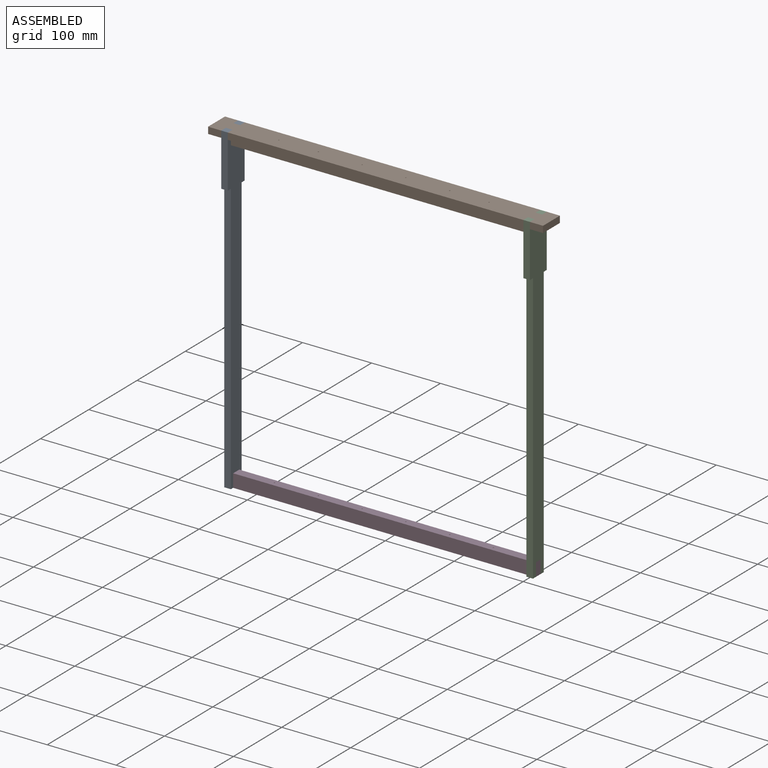
[diagram: assembled view]
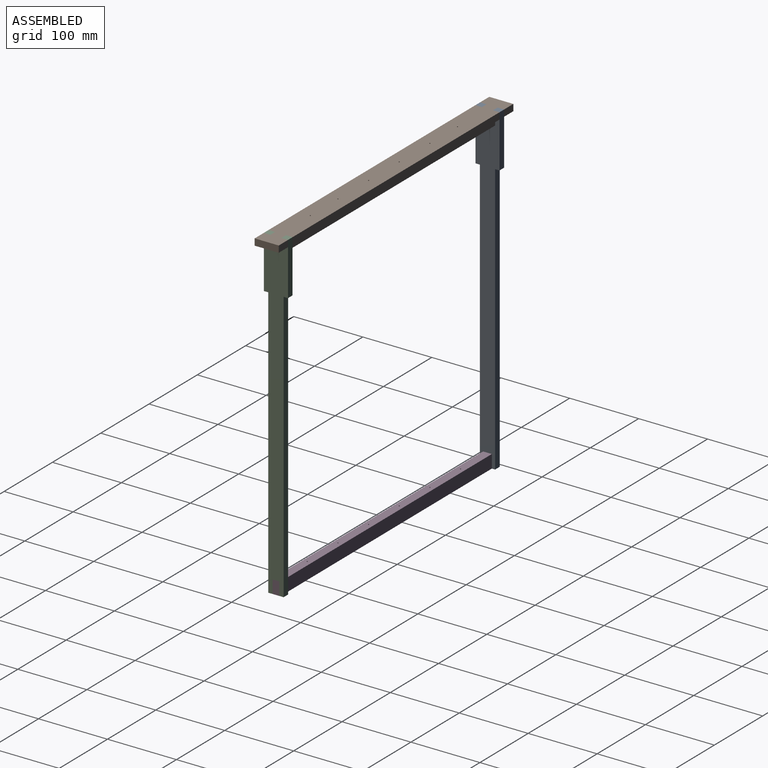
[diagram: assembled view, second angle]
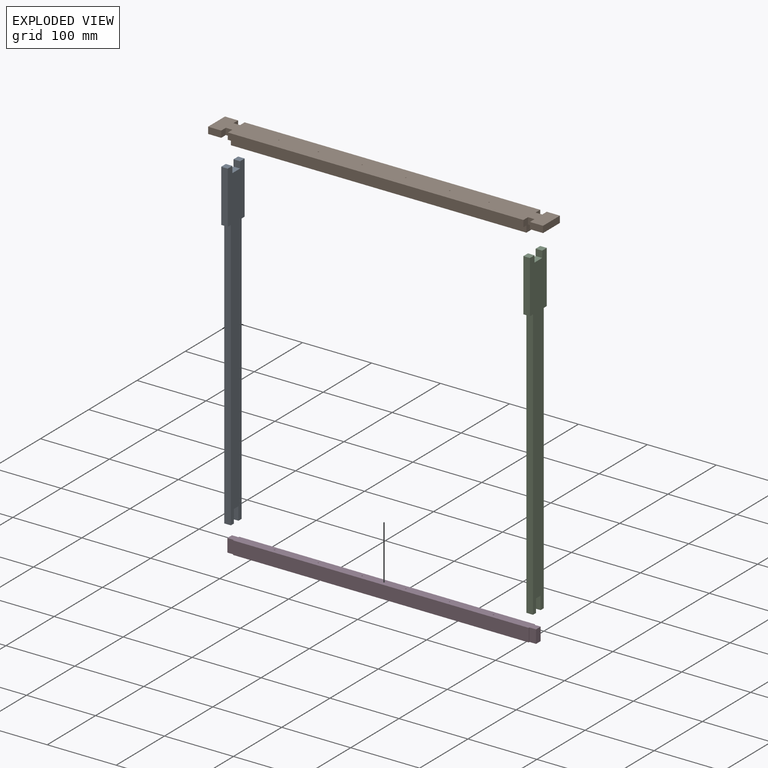
[diagram: exploded view]
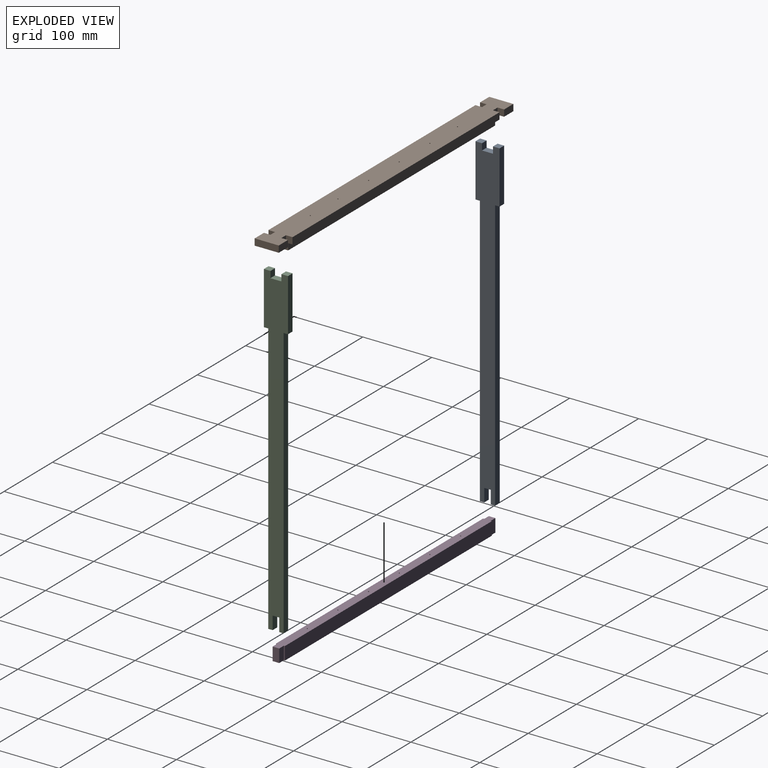
[diagram: exploded view, second angle]
ASSEMBLY  parts=4 mates=3
PART A: 18 faces, bbox 470x34.9x9.5 mm
  f0: plane 9.53x6.35mm, normal (1,0,0), area 60.5mm2, adj f1,f15,f16,f17
  f1: plane 19.05x9.53mm, normal (0,1,0), area 181.5mm2, adj f0,f2,f16,f17
  f2: plane 9.53x9.53mm, normal (1,0,0), area 90.7mm2, adj f1,f3,f16,f17
  f3: plane 19.05x9.53mm, normal (0,-1,0), area 181.5mm2, adj f2,f4,f16,f17
  f4: plane 9.53x6.35mm, normal (1,0,0), area 60.5mm2, adj f3,f5,f16,f17
  f5: plane 393.7x9.53mm, normal (0,1,0), area 3750mm2, adj f4,f6,f16,f17
  f6: plane 9.53x6.35mm, normal (1,0,0), area 60.5mm2, adj f5,f7,f16,f17
  f7: plane 76.25x9.53mm, normal (0,1,0), area 726.3mm2, adj f6,f8,f16,f17
  f8: plane 9.53x9.53mm, normal (-1,0,0), area 90.7mm2, adj f7,f9,f16,f17
  f9: plane 9.53x9.53mm, normal (0,-1,0), area 90.7mm2, adj f8,f10,f16,f17
  f10: plane 15.88x9.53mm, normal (-1,0,0), area 151.2mm2, adj f9,f11,f16,f17
  f11: plane 9.53x9.53mm, normal (0,1,0), area 90.7mm2, adj f10,f12,f16,f17
  f12: plane 9.53x9.53mm, normal (-1,0,0), area 90.7mm2, adj f11,f13,f16,f17
  f13: plane 76.25x9.53mm, normal (0,-1,0), area 726.3mm2, adj f12,f14,f16,f17
  f14: plane 9.53x6.35mm, normal (1,0,0), area 60.5mm2, adj f13,f15,f16,f17
  f15: plane 393.7x9.53mm, normal (0,-1,0), area 3750mm2, adj f0,f14,f16,f17
  f16: plane 469.95x34.93mm, normal (0,0,-1), area 11080.4mm2, adj f0,f1,f2,f3,f4,f5,f6,f7
  f17: plane 469.95x34.93mm, normal (0,0,1), area 11080.4mm2, adj f0,f1,f2,f3,f4,f5,f6,f7
PART B: 32 faces, bbox 485.8x34.9x19.1 mm
  f0: plane 34.93x19.05mm, normal (1,0,0), area 393.1mm2, adj f1,f2,f10,f11,f12,f13,f14,f20
  f1: plane 428.63x9.53mm, normal (0,1,0), area 4082.7mm2, adj f0,f8,f10,f13
  f2: plane 428.63x9.53mm, normal (0,-1,0), area 4082.7mm2, adj f0,f8,f10,f23
  f3: cylinder r=0.79mm len=19.05mm, axis (0,0,1), area 95mm2, adj f10,f11
  f4: cylinder r=0.79mm len=19.05mm, axis (0,0,1), area 95mm2, adj f10,f11
  f5: cylinder r=0.79mm len=19.05mm, axis (0,0,1), area 95mm2, adj f10,f11
  f6: cylinder r=0.79mm len=19.05mm, axis (0,0,1), area 95mm2, adj f10,f11
  f7: cylinder r=0.79mm len=19.05mm, axis (0,0,1), area 95mm2, adj f10,f11
  f8: plane 34.93x19.05mm, normal (-1,0,0), area 393.1mm2, adj f1,f2,f10,f11,f12,f13,f22,f23
  f9: cylinder r=0.79mm len=19.05mm, axis (0,0,1), area 95mm2, adj f10,f11
  f10: plane 428.63x22.23mm, normal (0,0,-1), area 9514.3mm2, adj f0,f1,f2,f3,f4,f5,f6,f7
  f11: plane 485.78x34.93mm, normal (0,0,1), area 16590.9mm2, adj f0,f3,f4,f5,f6,f7,f8,f9
  f12: plane 428.63x9.53mm, normal (0,1,0), area 4082.7mm2, adj f0,f8,f11,f13
  f13: plane 428.63x6.35mm, normal (0,0,-1), area 2721.8mm2, adj f0,f1,f8,f12
  f14: plane 9.53x9.53mm, normal (0,-1,0), area 90.7mm2, adj f0,f11,f15,f21
  f15: plane 9.53x9.53mm, normal (-1,0,0), area 90.7mm2, adj f11,f14,f16,f21
  f16: plane 19.05x9.53mm, normal (0,-1,0), area 181.5mm2, adj f11,f15,f17,f21
  f17: plane 34.93x9.53mm, normal (1,0,0), area 332.7mm2, adj f11,f16,f18,f21
  f18: plane 19.05x9.53mm, normal (0,1,0), area 181.5mm2, adj f11,f17,f19,f21
  f19: plane 9.53x9.53mm, normal (-1,0,0), area 90.7mm2, adj f11,f18,f20,f21
  f20: plane 9.53x9.53mm, normal (0,1,0), area 90.7mm2, adj f0,f11,f19,f21
  f21: plane 34.93x28.58mm, normal (0,0,-1), area 816.5mm2, adj f0,f14,f15,f16,f17,f18,f19,f20
  f22: plane 428.63x9.53mm, normal (0,-1,0), area 4082.7mm2, adj f0,f8,f11,f23
  f23: plane 428.63x6.35mm, normal (0,0,-1), area 2721.8mm2, adj f0,f2,f8,f22
  f24: plane 9.53x9.53mm, normal (0,1,0), area 90.7mm2, adj f8,f11,f25,f31
  f25: plane 9.53x9.53mm, normal (1,0,0), area 90.7mm2, adj f11,f24,f26,f31
  f26: plane 19.05x9.53mm, normal (0,1,0), area 181.5mm2, adj f11,f25,f27,f31
  f27: plane 34.93x9.53mm, normal (-1,0,0), area 332.7mm2, adj f11,f26,f28,f31
  f28: plane 19.05x9.53mm, normal (0,-1,0), area 181.5mm2, adj f11,f27,f29,f31
  f29: plane 9.53x9.53mm, normal (1,0,0), area 90.7mm2, adj f11,f28,f30,f31
  f30: plane 9.53x9.53mm, normal (0,-1,0), area 90.7mm2, adj f8,f11,f29,f31
  f31: plane 34.93x28.58mm, normal (0,0,-1), area 816.5mm2, adj f8,f24,f25,f26,f27,f28,f29,f30
PART C: same geometry as A
PART D: 20 faces, bbox 447.7x12.7x19.1 mm
  f0: plane 19.05x9.53mm, normal (0,-1,0), area 181.5mm2, adj f1,f17,f18,f19
  f1: plane 19.05x1.59mm, normal (-1,0,0), area 30.2mm2, adj f0,f2,f18,f19
  f2: plane 428.63x19.05mm, normal (0,-1,0), area 8165.3mm2, adj f1,f3,f18,f19
  f3: plane 19.05x1.59mm, normal (1,0,0), area 30.2mm2, adj f2,f4,f18,f19
  f4: plane 19.05x9.53mm, normal (0,-1,0), area 181.5mm2, adj f3,f5,f18,f19
  f5: plane 19.05x9.53mm, normal (1,0,0), area 181.5mm2, adj f4,f6,f18,f19
  f6: plane 19.05x9.53mm, normal (0,1,0), area 181.5mm2, adj f5,f7,f18,f19
  f7: plane 19.05x1.59mm, normal (1,0,0), area 30.2mm2, adj f6,f8,f18,f19
  f8: plane 428.63x19.05mm, normal (0,1,0), area 8165.3mm2, adj f7,f9,f18,f19
  f9: plane 19.05x1.59mm, normal (-1,0,0), area 30.2mm2, adj f8,f10,f18,f19
  f10: plane 19.05x9.53mm, normal (0,1,0), area 181.5mm2, adj f9,f17,f18,f19
  f11: cylinder r=0.79mm len=19.05mm, axis (0,0,1), area 95mm2, adj f18,f19
  f12: cylinder r=0.79mm len=19.05mm, axis (0,0,1), area 95mm2, adj f18,f19
  f13: cylinder r=0.79mm len=19.05mm, axis (0,0,1), area 95mm2, adj f18,f19
  f14: cylinder r=0.79mm len=19.05mm, axis (0,0,1), area 95mm2, adj f18,f19
  f15: cylinder r=0.79mm len=19.05mm, axis (0,0,1), area 95mm2, adj f18,f19
  f16: cylinder r=0.79mm len=19.05mm, axis (0,0,1), area 95mm2, adj f18,f19
  f17: plane 19.05x9.53mm, normal (-1,0,0), area 181.5mm2, adj f0,f10,f18,f19
  f18: plane 447.68x12.7mm, normal (0,0,-1), area 5613.1mm2, adj f0,f1,f2,f3,f4,f5,f6,f7
  f19: plane 447.68x12.7mm, normal (0,0,1), area 5613.1mm2, adj f0,f1,f2,f3,f4,f5,f6,f7
PLACE A rot(axis=(0,1,0),90deg) t=(-212.56,-47.84,199.48)mm
PLACE B t=(1.76,-47.84,-73.28)mm
PLACE C rot(axis=(0,1,0),90deg) t=(225.59,-47.84,199.48)mm
PLACE D t=(-1015.25,-47.84,-524.18)mm
MATE fastened A.f8 <-> B.f11  axis (0,0,1) through (-222.08,-39.9,-73.28)mm
MATE fastened D.f18 <-> C.f0  axis (0,0,-1) through (216.07,-52.6,-543.23)mm
MATE fastened C.f12 <-> B.f11  axis (0,0,1) through (225.59,-55.78,-73.28)mm
